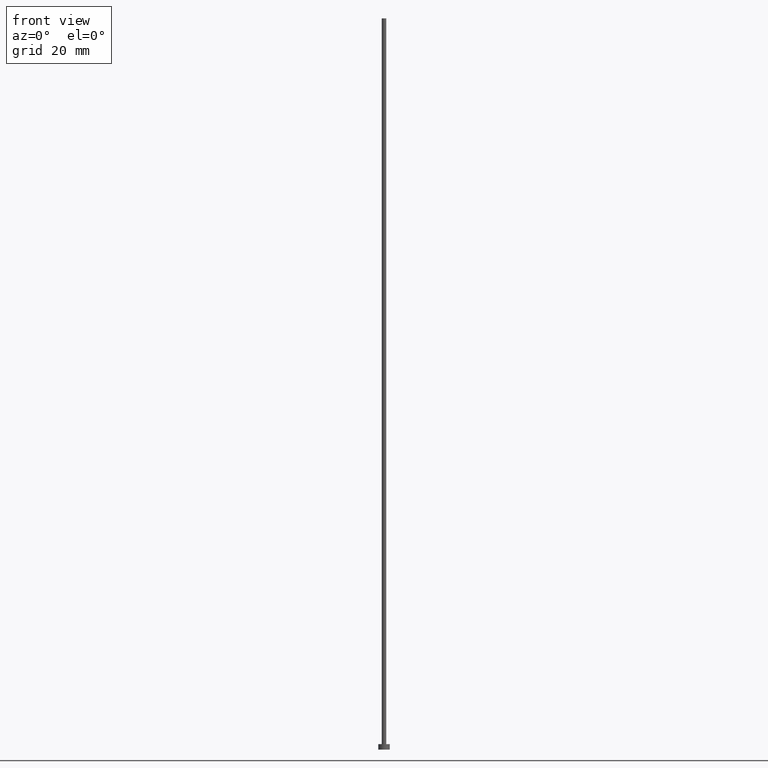
[diagram: clean part render]
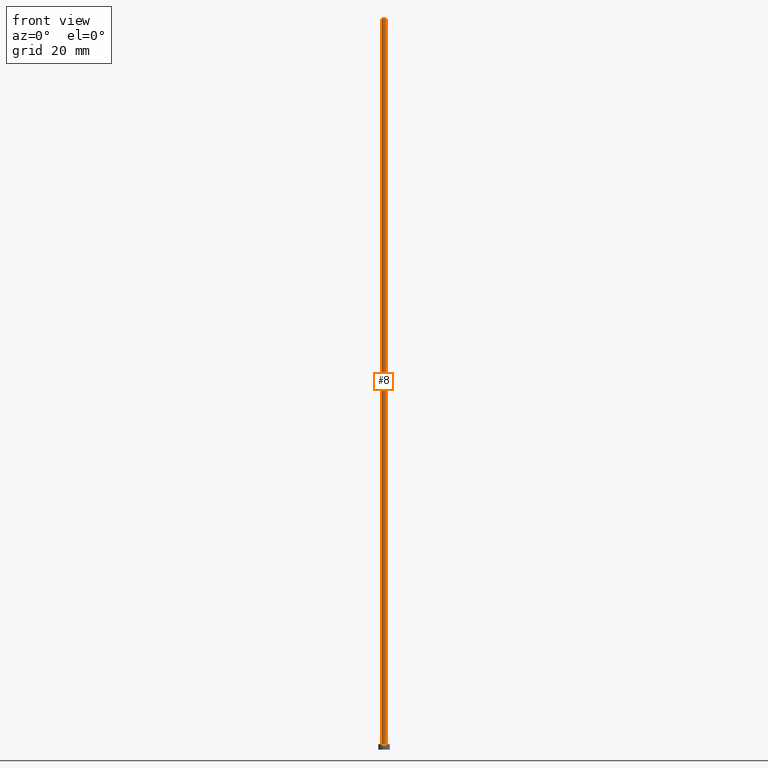
[diagram: same view with one face highlighted and labeled with its STEP entity id]
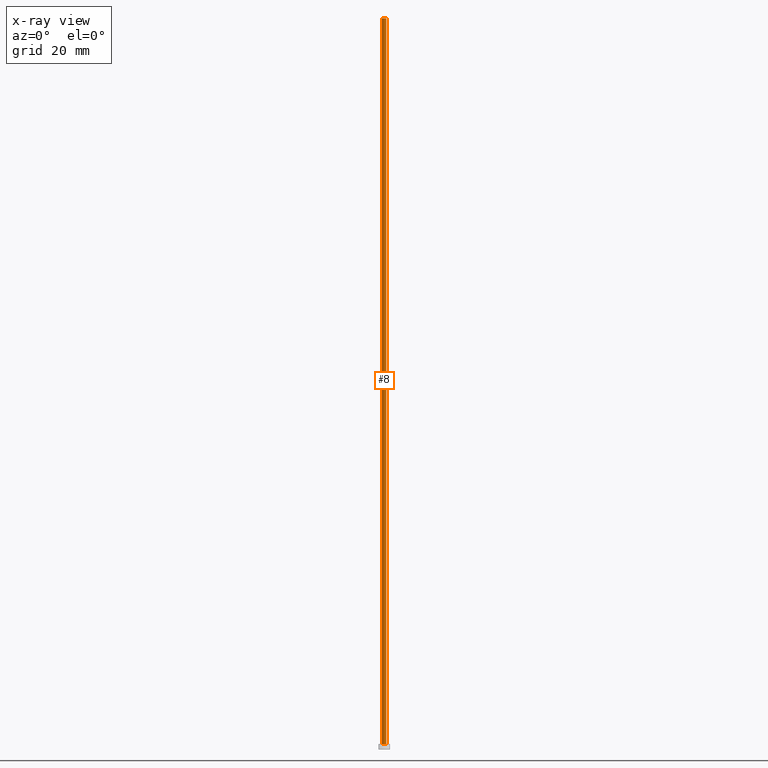
[diagram: x-ray of the same camera — body ghosted, the highlighted face saturated]
A machine part, front view. The second image highlights one B-rep face of the part: STEP entity #8.
The next image is the same camera in x-ray: the body ghosted, the highlighted face saturated — about 0% of this face is hidden behind the body in this view.
In plain terms, the highlighted cylindrical surface (edge-blend (fillet) strip) has radius 0.5 mm, axis along (-0, -0, -1).
Its self-contained STEP definition (entity closure, byte-faithful):
#1 = LINE ( 'NONE', #216, #159 ) ;
#4 = DIRECTION ( 'NONE',  ( 0.000000000000000000, 0.000000000000000000, 1.000000000000000000 ) ) ;
#5 = CIRCLE ( 'NONE', #149, 0.5000000000000000000 ) ;
#8 = ADVANCED_FACE ( 'NONE', ( #36 ), #254, .T. ) ;
#17 = CARTESIAN_POINT ( 'NONE',  ( -0.5000000000000000000, 0.000000000000000000, 1.199999999999999956 ) ) ;
#26 = VERTEX_POINT ( 'NONE', #17 ) ;
#36 = FACE_OUTER_BOUND ( 'NONE', #88, .T. ) ;
#38 = EDGE_CURVE ( 'NONE', #112, #111, #109, .T. ) ;
#44 = ORIENTED_EDGE ( 'NONE', *, *, #211, .T. ) ;
#45 = CARTESIAN_POINT ( 'NONE',  ( 0.5000000000000000000, 6.123233995736766036E-17, 160.0000000000000284 ) ) ;
#59 = DIRECTION ( 'NONE',  ( -0.000000000000000000, -0.000000000000000000, -1.000000000000000000 ) ) ;
#83 = CARTESIAN_POINT ( 'NONE',  ( 0.000000000000000000, 0.000000000000000000, 160.0000000000000284 ) ) ;
#88 = EDGE_LOOP ( 'NONE', ( #148, #228, #44, #139 ) ) ;
#102 = DIRECTION ( 'NONE',  ( 1.000000000000000000, 0.000000000000000000, 0.000000000000000000 ) ) ;
#109 = LINE ( 'NONE', #229, #205 ) ;
#111 = VERTEX_POINT ( 'NONE', #198 ) ;
#112 = VERTEX_POINT ( 'NONE', #45 ) ;
#116 = AXIS2_PLACEMENT_3D ( 'NONE', #234, #4, #135 ) ;
#119 = VERTEX_POINT ( 'NONE', #174 ) ;
#135 = DIRECTION ( 'NONE',  ( 1.000000000000000000, 0.000000000000000000, 0.000000000000000000 ) ) ;
#139 = ORIENTED_EDGE ( 'NONE', *, *, #155, .T. ) ;
#148 = ORIENTED_EDGE ( 'NONE', *, *, #38, .F. ) ;
#149 = AXIS2_PLACEMENT_3D ( 'NONE', #83, #200, #102 ) ;
#150 = DIRECTION ( 'NONE',  ( -0.000000000000000000, -0.000000000000000000, -1.000000000000000000 ) ) ;
#155 = EDGE_CURVE ( 'NONE', #26, #111, #242, .T. ) ;
#159 = VECTOR ( 'NONE', #59, 1000.000000000000000 ) ;
#168 = DIRECTION ( 'NONE',  ( -0.000000000000000000, -0.000000000000000000, -1.000000000000000000 ) ) ;
#174 = CARTESIAN_POINT ( 'NONE',  ( -0.5000000000000000000, 0.000000000000000000, 160.0000000000000284 ) ) ;
#192 = EDGE_CURVE ( 'NONE', #119, #112, #5, .T. ) ;
#198 = CARTESIAN_POINT ( 'NONE',  ( 0.5000000000000000000, 6.123233995736766036E-17, 1.199999999999999956 ) ) ;
#200 = DIRECTION ( 'NONE',  ( 0.000000000000000000, 0.000000000000000000, 1.000000000000000000 ) ) ;
#205 = VECTOR ( 'NONE', #168, 1000.000000000000000 ) ;
#211 = EDGE_CURVE ( 'NONE', #119, #26, #1, .T. ) ;
#215 = DIRECTION ( 'NONE',  ( -1.000000000000000000, 0.000000000000000000, 0.000000000000000000 ) ) ;
#216 = CARTESIAN_POINT ( 'NONE',  ( -0.5000000000000000000, 0.000000000000000000, 160.0000000000000284 ) ) ;
#228 = ORIENTED_EDGE ( 'NONE', *, *, #192, .F. ) ;
#229 = CARTESIAN_POINT ( 'NONE',  ( 0.5000000000000000000, 6.123233995736766036E-17, 160.0000000000000284 ) ) ;
#234 = CARTESIAN_POINT ( 'NONE',  ( 0.000000000000000000, 0.000000000000000000, 1.199999999999999956 ) ) ;
#242 = CIRCLE ( 'NONE', #116, 0.5000000000000000000 ) ;
#251 = CARTESIAN_POINT ( 'NONE',  ( 0.000000000000000000, 0.000000000000000000, 160.0000000000000284 ) ) ;
#252 = AXIS2_PLACEMENT_3D ( 'NONE', #251, #150, #215 ) ;
#254 = CYLINDRICAL_SURFACE ( 'NONE', #252, 0.5000000000000000000 ) ;